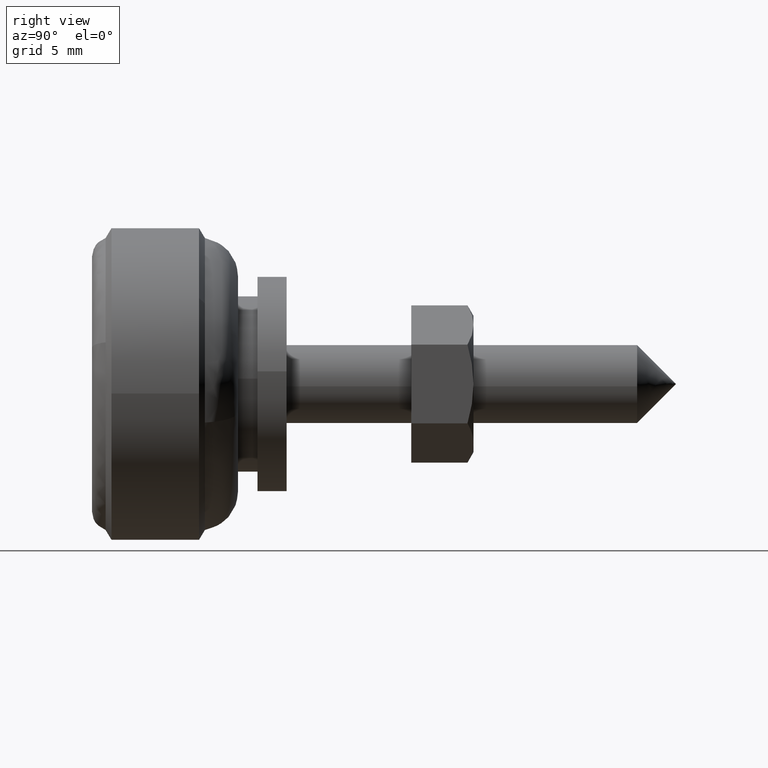
[diagram: clean part render]
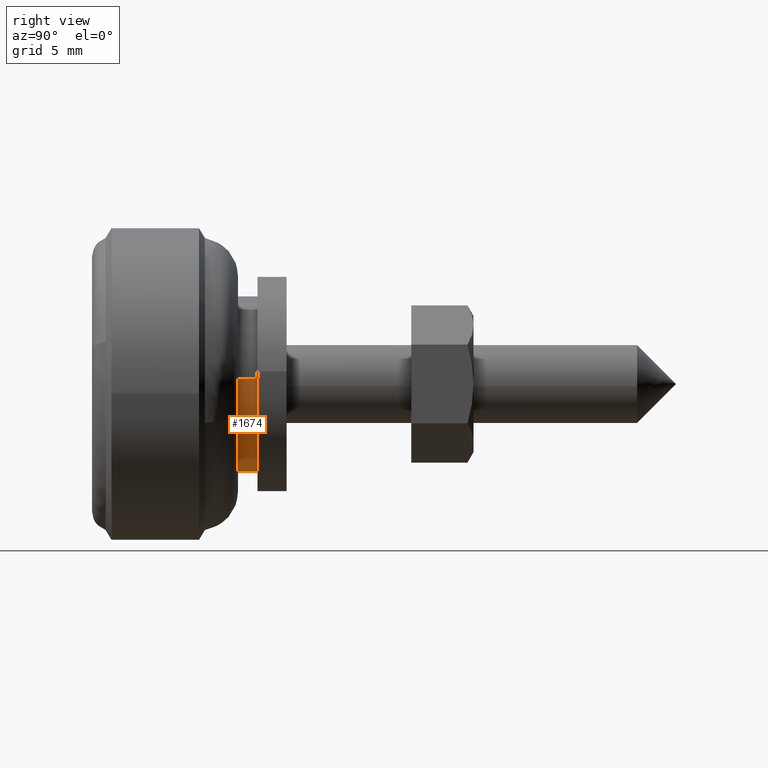
[diagram: same view with one face highlighted and labeled with its STEP entity id]
A machine part, right view. The second image highlights one B-rep face of the part: STEP entity #1674.
In plain terms, the highlighted face is a freeform B-spline surface patch.
Its self-contained STEP definition (entity closure, byte-faithful):
#1511=CARTESIAN_POINT('',(-2.500000000000111,4.468543369488251,-0.531149842308717));
#1512=VERTEX_POINT('',#1511);
#1530=CARTESIAN_POINT('',(-2.500000000000220,-4.491607051912603,0.274710922885183));
#1531=VERTEX_POINT('',#1530);
#1545=CARTESIAN_POINT('',(-1.500000000000055,-4.491607046378420,0.274711013373207));
#1546=VERTEX_POINT('',#1545);
#1547=CARTESIAN_POINT('',(-2.500000000000220,-4.491607051912603,0.274710922885183));
#1548=CARTESIAN_POINT('',(-1.500000000000055,-4.491607046378420,0.274711013373207));
#1549=QUASI_UNIFORM_CURVE('',1,(#1547,#1548),.UNSPECIFIED.,.F.,.U.);
#1550=EDGE_CURVE('',#1531,#1546,#1549,.T.);
#1567=CARTESIAN_POINT('',(-1.500000000000055,4.468543363446968,-0.531149893134203));
#1568=VERTEX_POINT('',#1567);
#1584=CARTESIAN_POINT('',(-2.500000000000111,4.468543369488251,-0.531149842308717));
#1585=CARTESIAN_POINT('',(-1.500000000000055,4.468543363446968,-0.531149893134203));
#1586=QUASI_UNIFORM_CURVE('',1,(#1584,#1585),.UNSPECIFIED.,.F.,.U.);
#1587=EDGE_CURVE('',#1512,#1568,#1586,.T.);
#1592=CARTESIAN_POINT('',(-2.524999999999943,-4.491606592898400,0.274718427906856));
#1593=CARTESIAN_POINT('',(-2.524999999999943,-4.766325020805256,-4.216888164991543));
#1594=CARTESIAN_POINT('',(-2.524999999999943,-0.274718427906856,-4.491606592898400));
#1595=CARTESIAN_POINT('',(-2.524999999999943,3.966945708777753,-4.751037885296373));
#1596=CARTESIAN_POINT('',(-2.524999999999943,4.468542868636499,-0.531154055955413));
#1597=CARTESIAN_POINT('',(-1.474375000000058,-4.491606592898400,0.274718427906856));
#1598=CARTESIAN_POINT('',(-1.474375000000058,-4.766325020805256,-4.216888164991543));
#1599=CARTESIAN_POINT('',(-1.474375000000058,-0.274718427906856,-4.491606592898400));
#1600=CARTESIAN_POINT('',(-1.474375000000058,3.966945708777753,-4.751037885296373));
#1601=CARTESIAN_POINT('',(-1.474375000000058,4.468542868636499,-0.531154055955413));
#1609=(BOUNDED_SURFACE()B_SPLINE_SURFACE(2,1,((#1592,#1597),(#1593,#1598),(#1594,#1599),(#1595,#1600),(#1596,#1601)),.UNSPECIFIED.,.F.,.F.,.U.)B_SPLINE_SURFACE_WITH_KNOTS((3,2,3),(2,2),(0.0,7.455844122715709,14.613454480522790),(0.0,1.0),.UNSPECIFIED.)GEOMETRIC_REPRESENTATION_ITEM()RATIONAL_B_SPLINE_SURFACE(((1.0,1.0),(0.707106781186548,0.707106781186548),(1.0,1.0),(0.718822509939086,0.718822509939086),(0.977505800795127,0.977505800795127)))REPRESENTATION_ITEM('')SURFACE());
#1610=CARTESIAN_POINT('',(-2.499999999999945,0.0,-4.500000000000000));
#1611=VERTEX_POINT('',#1610);
#1612=CARTESIAN_POINT('',(-2.499999999999945,0.0,-4.500000000000000));
#1613=CARTESIAN_POINT('',(-2.499999999999945,3.996789162112826,-4.500000000000000));
#1614=CARTESIAN_POINT('',(-2.500000000000111,4.468543369488251,-0.531149842308717));
#1622=(BOUNDED_CURVE()B_SPLINE_CURVE(2,(#1612,#1613,#1614),.UNSPECIFIED.,.F.,.U.)B_SPLINE_CURVE_WITH_KNOTS((3,3),(0.500000000000000,0.729562632878561),.UNSPECIFIED.)CURVE()GEOMETRIC_REPRESENTATION_ITEM()RATIONAL_B_SPLINE_CURVE((1.0,0.731050646147630,0.956027066545962))REPRESENTATION_ITEM(''));
#1623=EDGE_CURVE('',#1611,#1512,#1622,.T.);
#1624=ORIENTED_EDGE('',*,*,#1623,.T.);
#1625=ORIENTED_EDGE('',*,*,#1587,.T.);
#1626=CARTESIAN_POINT('',(-1.500000000000055,0.0,-4.500000000000000));
#1627=VERTEX_POINT('',#1626);
#1628=CARTESIAN_POINT('',(-1.500000000000055,0.0,-4.500000000000000));
#1629=CARTESIAN_POINT('',(-1.500000000000056,3.996789116333089,-4.500000000000001));
#1630=CARTESIAN_POINT('',(-1.500000000000056,4.468543363446968,-0.531149893134203));
#1638=(BOUNDED_CURVE()B_SPLINE_CURVE(2,(#1628,#1629,#1630),.UNSPECIFIED.,.F.,.U.)B_SPLINE_CURVE_WITH_KNOTS((3,3),(0.0,0.229562630956307),.UNSPECIFIED.)CURVE()GEOMETRIC_REPRESENTATION_ITEM()RATIONAL_B_SPLINE_CURVE((1.0,0.731050648399690,0.956027062778260))REPRESENTATION_ITEM(''));
#1639=EDGE_CURVE('',#1627,#1568,#1638,.T.);
#1640=ORIENTED_EDGE('',*,*,#1639,.F.);
#1641=CARTESIAN_POINT('',(-1.500000000000056,-4.491607046378421,0.274711013373207));
#1642=CARTESIAN_POINT('',(-1.500000000000055,-4.500000000000000,0.137483717182479));
#1643=CARTESIAN_POINT('',(-1.500000000000055,-4.500000000000000,0.0));
#1644=CARTESIAN_POINT('',(-1.500000000000055,-4.500000000000000,-4.500000000000000));
#1645=CARTESIAN_POINT('',(-1.500000000000055,0.0,-4.500000000000000));
#1653=(BOUNDED_CURVE()B_SPLINE_CURVE(2,(#1641,#1642,#1643,#1644,#1645),.UNSPECIFIED.,.F.,.U.)B_SPLINE_CURVE_WITH_KNOTS((3,2,3),(0.739333247074182,0.750000000000000,1.0),.UNSPECIFIED.)CURVE()GEOMETRIC_REPRESENTATION_ITEM()RATIONAL_B_SPLINE_CURVE((0.976072652123617,0.987503121605078,1.0,0.707106781186547,1.0))REPRESENTATION_ITEM(''));
#1654=EDGE_CURVE('',#1546,#1627,#1653,.T.);
#1655=ORIENTED_EDGE('',*,*,#1654,.F.);
#1656=ORIENTED_EDGE('',*,*,#1550,.F.);
#1657=CARTESIAN_POINT('',(-2.500000000000220,-4.491607051912603,0.274710922885183));
#1658=CARTESIAN_POINT('',(-2.499999999999945,-4.500000000000001,0.137483671811619));
#1659=CARTESIAN_POINT('',(-2.499999999999945,-4.500000000000000,0.0));
#1660=CARTESIAN_POINT('',(-2.499999999999945,-4.500000000000000,-4.500000000000000));
#1661=CARTESIAN_POINT('',(-2.499999999999945,0.0,-4.500000000000000));
#1669=(BOUNDED_CURVE()B_SPLINE_CURVE(2,(#1657,#1658,#1659,#1660,#1661),.UNSPECIFIED.,.F.,.U.)B_SPLINE_CURVE_WITH_KNOTS((3,2,3),(0.239333250550316,0.250000000000000,0.500000000000000),.UNSPECIFIED.)CURVE()GEOMETRIC_REPRESENTATION_ITEM()RATIONAL_B_SPLINE_CURVE((0.976072659573651,0.987503125677622,1.0,0.707106781186547,1.0))REPRESENTATION_ITEM(''));
#1670=EDGE_CURVE('',#1531,#1611,#1669,.T.);
#1671=ORIENTED_EDGE('',*,*,#1670,.T.);
#1672=EDGE_LOOP('',(#1624,#1625,#1640,#1655,#1656,#1671));
#1673=FACE_OUTER_BOUND('',#1672,.T.);
#1674=ADVANCED_FACE('',(#1673),#1609,.T.);